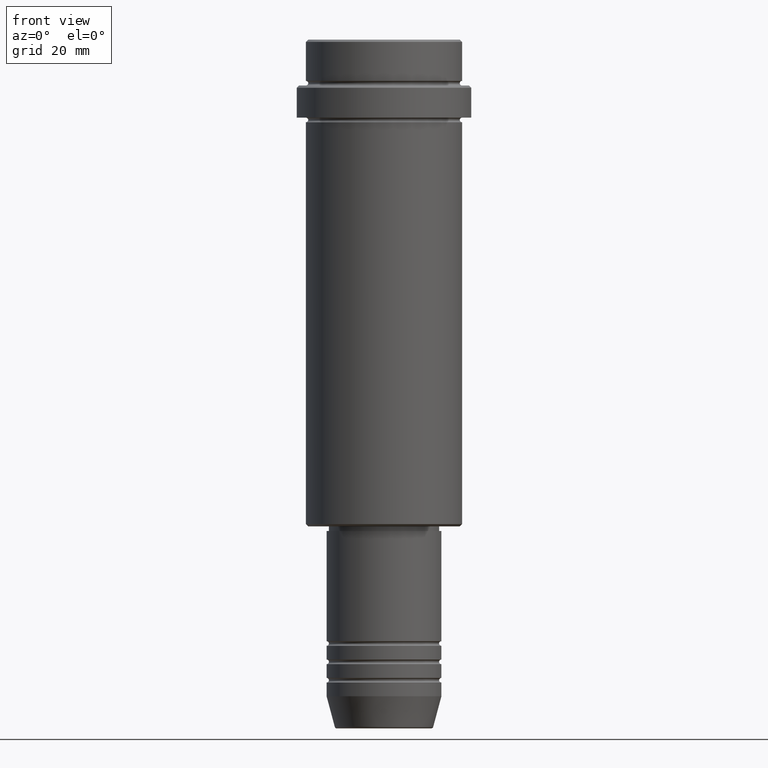
[diagram: clean part render]
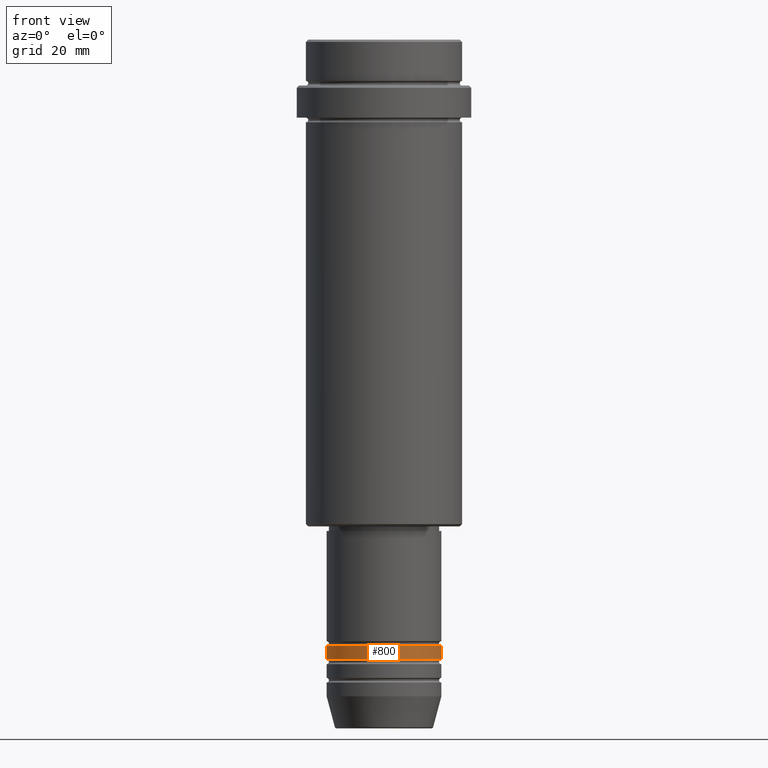
[diagram: same view with one face highlighted and labeled with its STEP entity id]
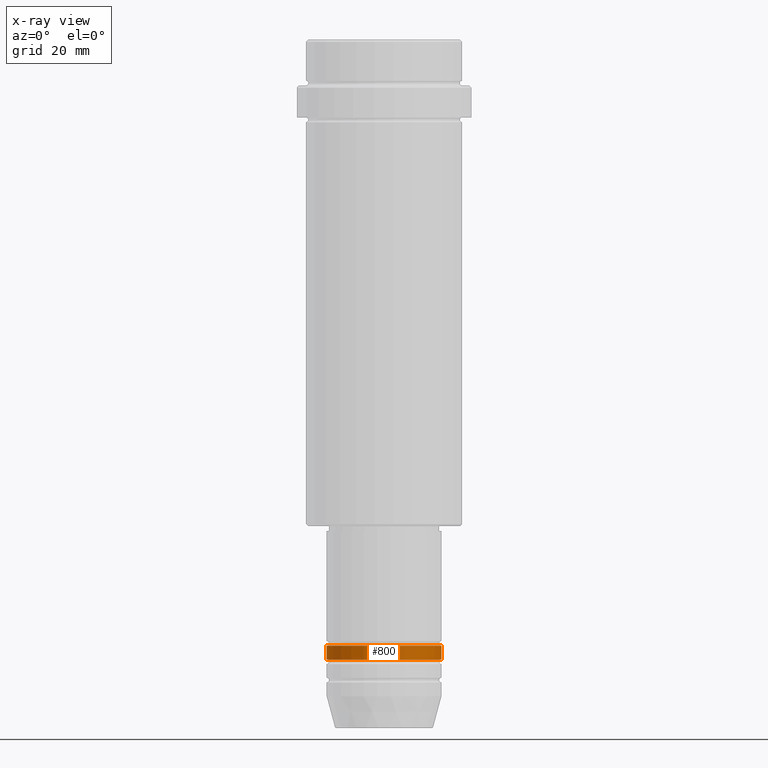
[diagram: x-ray of the same camera — body ghosted, the highlighted face saturated]
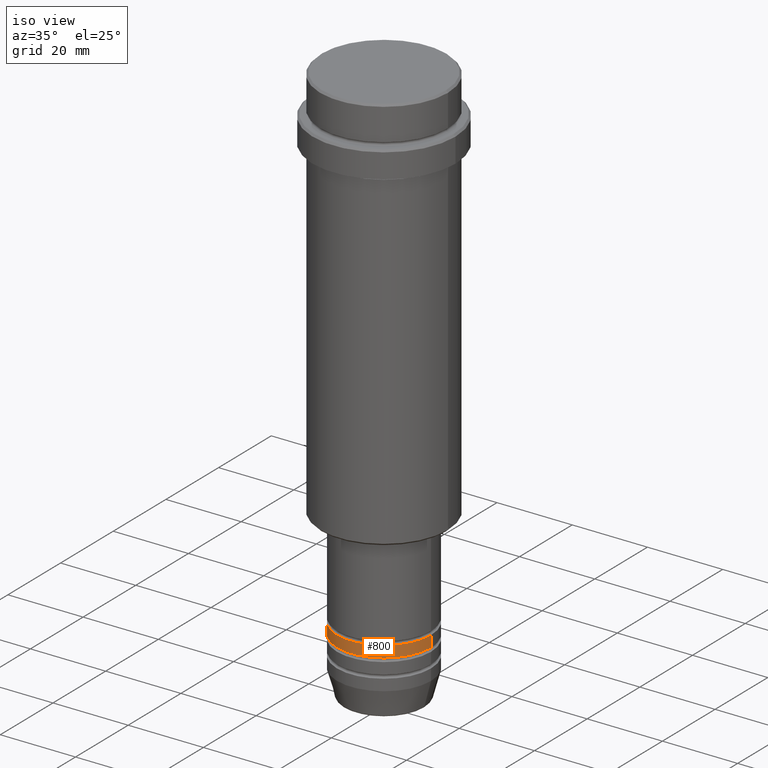
[diagram: same view with one face highlighted and labeled with its STEP entity id]
A machine part, front view. The second image highlights one B-rep face of the part: STEP entity #800.
The next image is the same camera in x-ray: the body ghosted, the highlighted face saturated — about 0% of this face is hidden behind the body in this view.
A second angle (iso view) of the same face is appended — the face is thin or edge-on in the first view.
In plain terms, the highlighted cylindrical surface (partial cylindrical patch) has radius 12.5 mm, axis along (-0, -0, 1).
Its self-contained STEP definition (entity closure, byte-faithful):
#12 = DIRECTION ( 'NONE',  ( -0.000000000000000000, -0.000000000000000000, 1.000000000000000000 ) ) ;
#15 = DIRECTION ( 'NONE',  ( -0.000000000000000000, -0.000000000000000000, 1.000000000000000000 ) ) ;
#30 = VERTEX_POINT ( 'NONE', #841 ) ;
#37 = ORIENTED_EDGE ( 'NONE', *, *, #724, .F. ) ;
#82 = VERTEX_POINT ( 'NONE', #157 ) ;
#154 = EDGE_CURVE ( 'NONE', #82, #391, #209, .T. ) ;
#157 = CARTESIAN_POINT ( 'NONE',  ( -12.50000000000000000, 1.530808498934191521E-15, -134.9999999999998863 ) ) ;
#164 = AXIS2_PLACEMENT_3D ( 'NONE', #548, #15, #464 ) ;
#209 = CIRCLE ( 'NONE', #164, 12.50000000000000000 ) ;
#237 = DIRECTION ( 'NONE',  ( -0.000000000000000000, -0.000000000000000000, 1.000000000000000000 ) ) ;
#323 = VECTOR ( 'NONE', #237, 1000.000000000000000 ) ;
#359 = DIRECTION ( 'NONE',  ( 1.000000000000000000, 0.000000000000000000, 0.000000000000000000 ) ) ;
#391 = VERTEX_POINT ( 'NONE', #1286 ) ;
#420 = DIRECTION ( 'NONE',  ( -0.000000000000000000, -0.000000000000000000, 1.000000000000000000 ) ) ;
#439 = DIRECTION ( 'NONE',  ( 1.000000000000000000, 0.000000000000000000, 0.000000000000000000 ) ) ;
#460 = AXIS2_PLACEMENT_3D ( 'NONE', #651, #12, #439 ) ;
#464 = DIRECTION ( 'NONE',  ( 1.000000000000000000, 0.000000000000000000, 0.000000000000000000 ) ) ;
#548 = CARTESIAN_POINT ( 'NONE',  ( 0.000000000000000000, 0.000000000000000000, -134.9999999999998863 ) ) ;
#651 = CARTESIAN_POINT ( 'NONE',  ( 0.000000000000000000, 0.000000000000000000, -131.9999999999998863 ) ) ;
#669 = ORIENTED_EDGE ( 'NONE', *, *, #154, .T. ) ;
#681 = CARTESIAN_POINT ( 'NONE',  ( 0.000000000000000000, 0.000000000000000000, 0.000000000000000000 ) ) ;
#691 = EDGE_LOOP ( 'NONE', ( #904, #669, #737, #37 ) ) ;
#724 = EDGE_CURVE ( 'NONE', #30, #1008, #1185, .T. ) ;
#737 = ORIENTED_EDGE ( 'NONE', *, *, #1321, .T. ) ;
#793 = VECTOR ( 'NONE', #420, 1000.000000000000000 ) ;
#800 = ADVANCED_FACE ( 'NONE', ( #1000 ), #1350, .T. ) ;
#841 = CARTESIAN_POINT ( 'NONE',  ( -12.50000000000000000, 1.530808498934191521E-15, -131.9999999999998863 ) ) ;
#856 = CARTESIAN_POINT ( 'NONE',  ( 12.50000000000000000, 0.000000000000000000, -131.9999999999998863 ) ) ;
#904 = ORIENTED_EDGE ( 'NONE', *, *, #1012, .F. ) ;
#1000 = FACE_OUTER_BOUND ( 'NONE', #691, .T. ) ;
#1008 = VERTEX_POINT ( 'NONE', #856 ) ;
#1012 = EDGE_CURVE ( 'NONE', #82, #30, #1170, .T. ) ;
#1054 = CARTESIAN_POINT ( 'NONE',  ( -12.50000000000000000, 1.530808498934191521E-15, 0.000000000000000000 ) ) ;
#1128 = DIRECTION ( 'NONE',  ( -0.000000000000000000, -0.000000000000000000, 1.000000000000000000 ) ) ;
#1170 = LINE ( 'NONE', #1054, #793 ) ;
#1185 = CIRCLE ( 'NONE', #460, 12.50000000000000000 ) ;
#1199 = LINE ( 'NONE', #1309, #323 ) ;
#1286 = CARTESIAN_POINT ( 'NONE',  ( 12.50000000000000000, 0.000000000000000000, -134.9999999999998863 ) ) ;
#1303 = AXIS2_PLACEMENT_3D ( 'NONE', #681, #1128, #359 ) ;
#1309 = CARTESIAN_POINT ( 'NONE',  ( 12.50000000000000000, 0.000000000000000000, 0.000000000000000000 ) ) ;
#1321 = EDGE_CURVE ( 'NONE', #391, #1008, #1199, .T. ) ;
#1350 = CYLINDRICAL_SURFACE ( 'NONE', #1303, 12.50000000000000000 ) ;